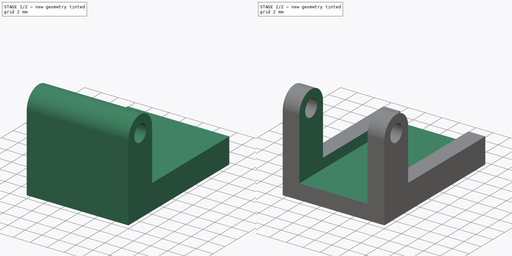
[diagram: build sequence overview — one tinted view per stage of 2, left to right]
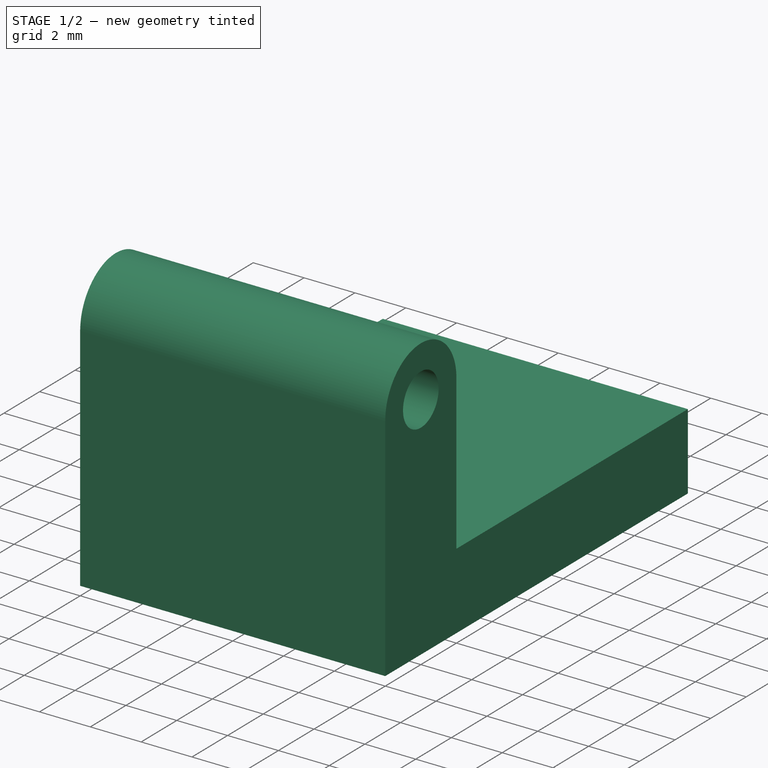
[diagram: stage 1 of 2 — iso view after this stage's code; geometry added in this stage tinted green]
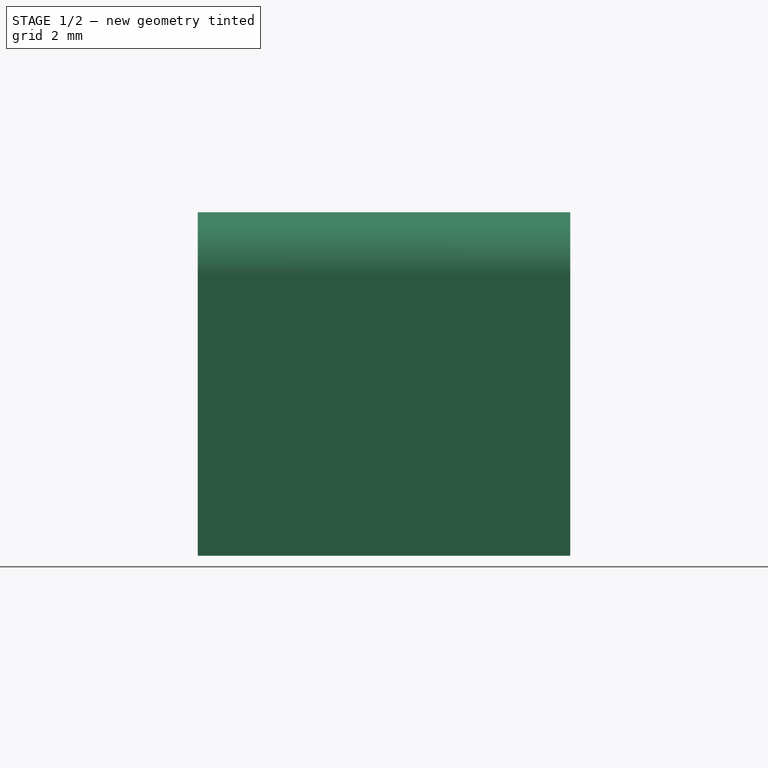
[diagram: stage 1 of 2 — front view after this stage's code; geometry added in this stage tinted green]
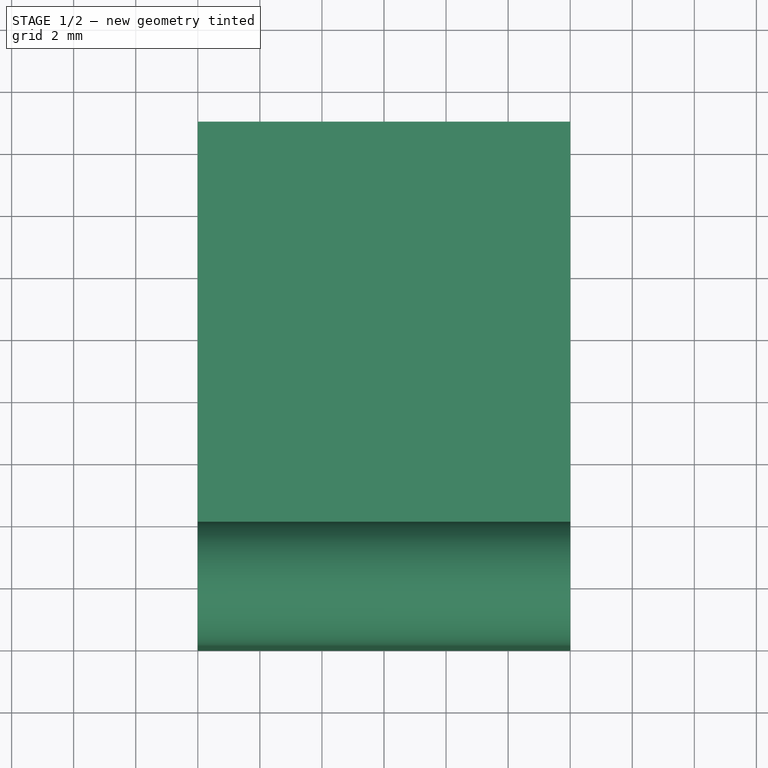
[diagram: stage 1 of 2 — top view after this stage's code; geometry added in this stage tinted green]
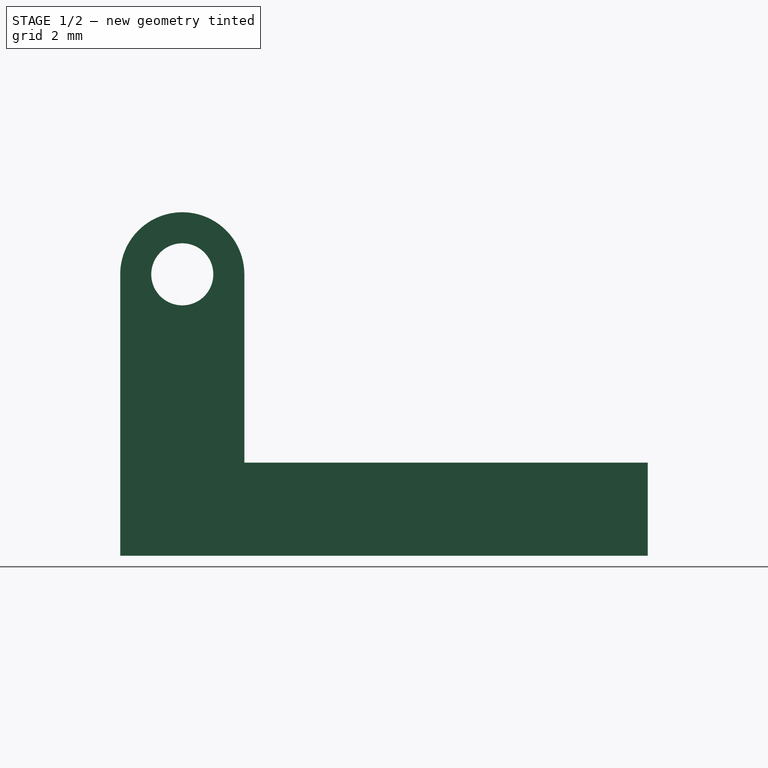
[diagram: stage 1 of 2 — right view after this stage's code; geometry added in this stage tinted green]
FCSTD DOCUMENT  (FreeCAD 0.19R24267 +148 (Git))
Label: Part Design
License: All rights reserved
LicenseURL: http://en.wikipedia.org/wiki/All_rights_reserved
objects: Sketcher::SketchObject×3, PartDesign::Pad×1, PartDesign::Plane×1, PartDesign::Pocket×1, PartDesign::Body×1
note: 9 computed .brp shape members not serialized (recipe doc carries the construction recipe); baked Part::Feature solids carry a one-line shape summary decoded from their .brp

FEATURE [Sketcher::SketchObject] Sketch
  FullyConstrained = false
  MapMode = 5
  Placement = pos=(0,0,0) rot=(0.57735,0.57735,0.57735;2.0944rad)
  Support = -> [YZ_Plane]
  sketch-geometry (7):
    g0: LineSegment StartX=0 StartY=0 StartZ=0 EndX=17 EndY=0 EndZ=0
    g1: LineSegment StartX=17 StartY=0 StartZ=0 EndX=17 EndY=3 EndZ=0
    g2: LineSegment StartX=17 StartY=3 StartZ=0 EndX=4 EndY=3 EndZ=0
    g3: LineSegment StartX=4 StartY=3 StartZ=0 EndX=4 EndY=9.068 EndZ=0
    g4: ArcOfCircle CenterX=2 CenterY=9.068 CenterZ=0 NormalX=0 NormalY=0 NormalZ=1 AngleXU=0 Radius=2 StartAngle=1e-16 EndAngle=3.14159
    g5: LineSegment StartX=0 StartY=9.068 StartZ=0 EndX=0 EndY=0 EndZ=0
    g6: Circle CenterX=2 CenterY=9.068 CenterZ=0 NormalX=0 NormalY=0 NormalZ=1 AngleXU=0 Radius=1
  constraints (14):
    c: Coincident(g-1,g0)
    c: PointOnObject(g0,g-1)
    c: Coincident(g0,g1)
    c: Vertical(g1)
    c: Coincident(g1,g2)
    c: Horizontal(g2)
    c: Coincident(g2,g3)
    c: Vertical(g3)
    c: Tangent(g3,g4) = -1.5708
    c: PointOnObject(g4,g-2)
    c: Tangent(g4,g5) = -1.5708
    c: Coincident(g5,g0)
    c: Coincident(g6,g4)
    c: Radius(g4) = 2
FEATURE [PartDesign::Pad] Pad
  Direction = (1,1,1)
  Length = 12
  Length2 = 100
  Placement = pos=(0,0,0) rot=(0.57735,0.57735,0.57735;2.0944rad)
  Profile = -> Sketch
  Type = 0
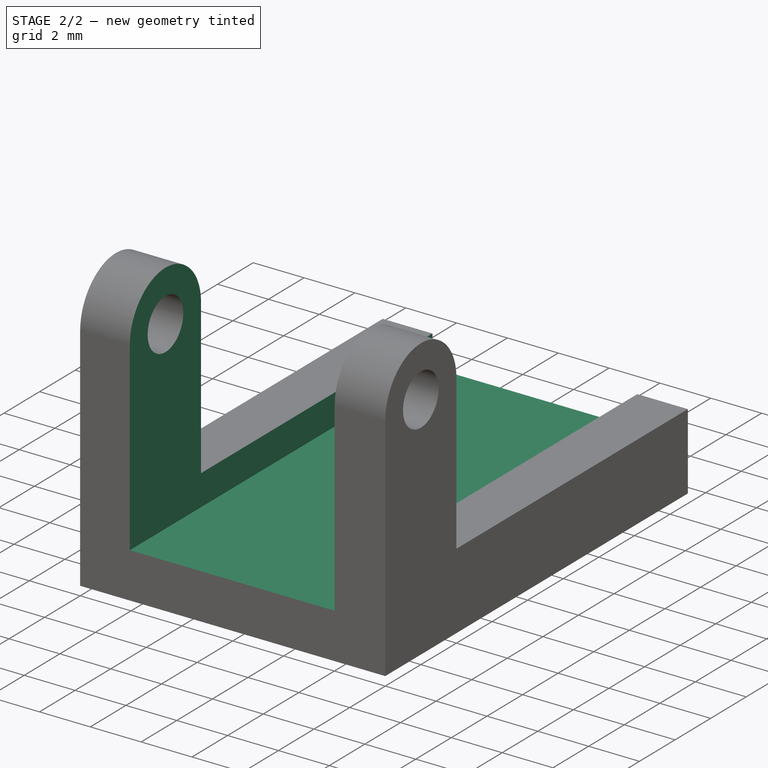
[diagram: stage 2 of 2 — iso view after this stage's code; geometry added in this stage tinted green]
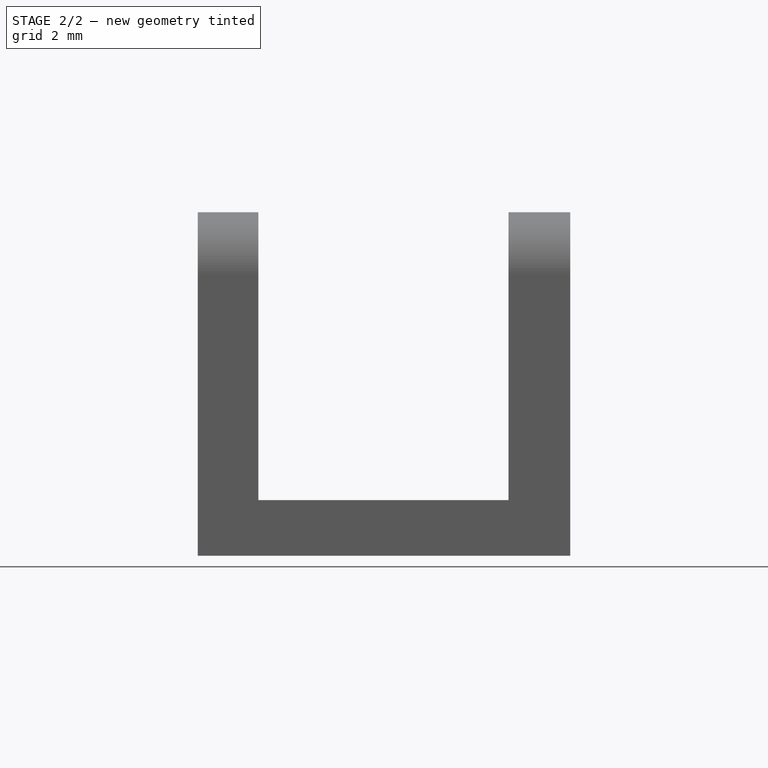
[diagram: stage 2 of 2 — front view after this stage's code; geometry added in this stage tinted green]
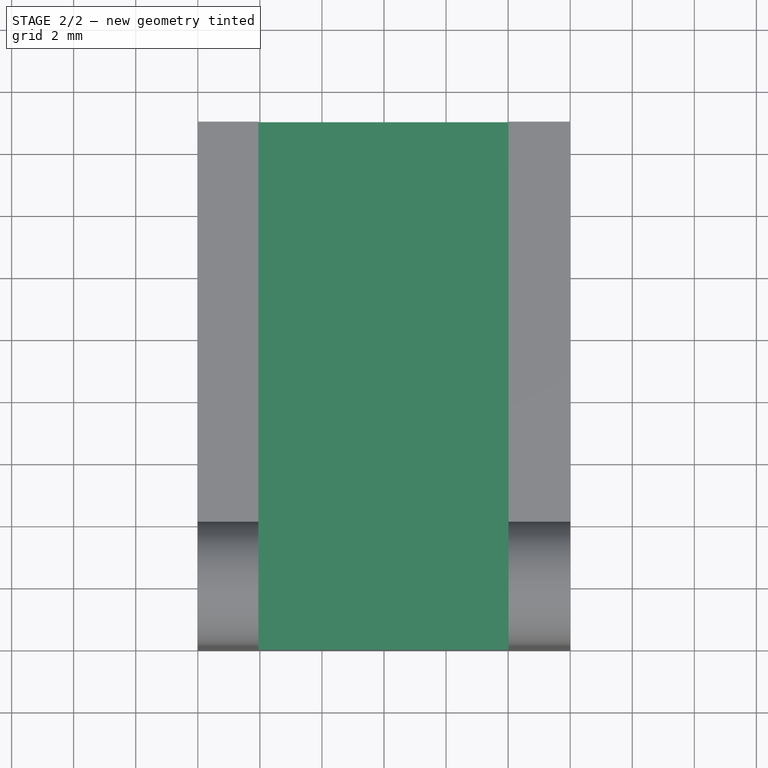
[diagram: stage 2 of 2 — top view after this stage's code; geometry added in this stage tinted green]
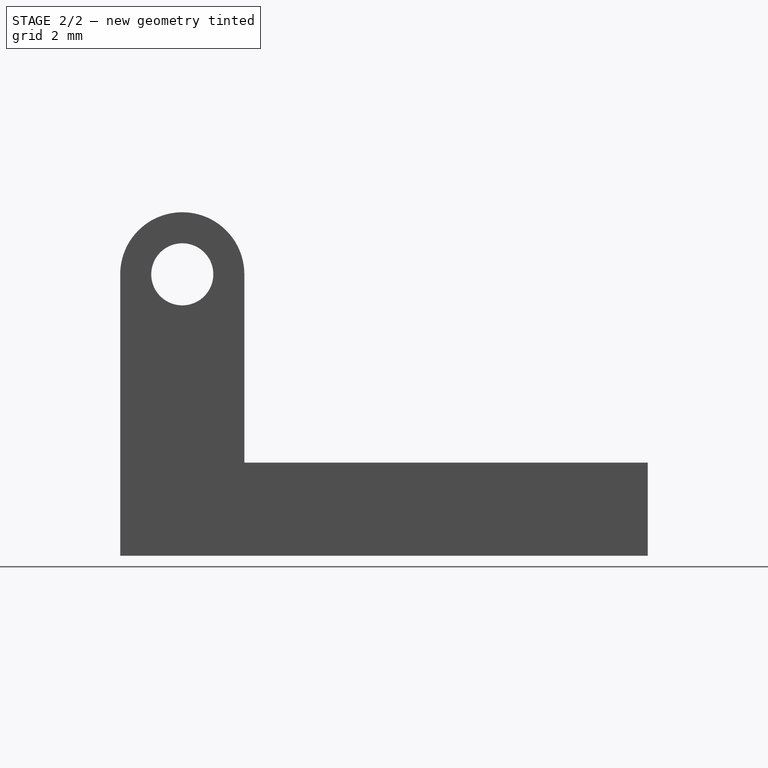
[diagram: stage 2 of 2 — right view after this stage's code; geometry added in this stage tinted green]
FEATURE [Sketcher::SketchObject] Sketch001
  FullyConstrained = true
  MapMode = 5
  Placement = pos=(0,0,0) rot=(1,0,0;1.5708rad)
  Support = -> [XZ_Plane]
FEATURE [PartDesign::Plane] DatumPlane
  Length = 60
  MapMode = 5
  Placement = pos=(7.5e-15,17,-5.7e-15) rot=(0.57735,0.57735,0.57735;4.18879rad)
  ResizeMode = 0
  Support = -> [Pad]
  Width = 60
FEATURE [Sketcher::SketchObject] Sketch002
  FullyConstrained = false
  MapMode = 5
  Placement = pos=(7.5e-15,17,-5.7e-15) rot=(0.57735,0.57735,0.57735;4.18879rad)
  Support = -> [Pad]
  sketch-geometry (4):
    g0: LineSegment StartX=13.2206 StartY=10.0112 StartZ=0 EndX=1.78991 EndY=10.0112 EndZ=0
    g1: LineSegment StartX=1.78991 StartY=10.0112 StartZ=0 EndX=1.78991 EndY=1.95375 EndZ=0
    g2: LineSegment StartX=1.78991 StartY=1.95375 StartZ=0 EndX=13.2206 EndY=1.95375 EndZ=0
    g3: LineSegment StartX=13.2206 StartY=1.95375 StartZ=0 EndX=13.2206 EndY=10.0112 EndZ=0
  constraints (8):
    c: Coincident(g0,g1)
    c: Coincident(g1,g2)
    c: Coincident(g2,g3)
    c: Coincident(g3,g0)
    c: Horizontal(g0)
    c: Horizontal(g2)
    c: Vertical(g1)
    c: Vertical(g3)
FEATURE [PartDesign::Pocket] Pocket
  BaseFeature = -> Pad
  Length = 17
  Length2 = 100
  Placement = pos=(0,0,0) rot=(0.57735,0.57735,0.57735;2.0944rad)
  Profile = -> Sketch002
  Type = 0
FEATURE [PartDesign::Body] Body
  Group = -> [Sketch,Pad,Sketch001,DatumPlane,Sketch002,Pocket]
  Origin = -> Origin
  Tip = -> Pocket
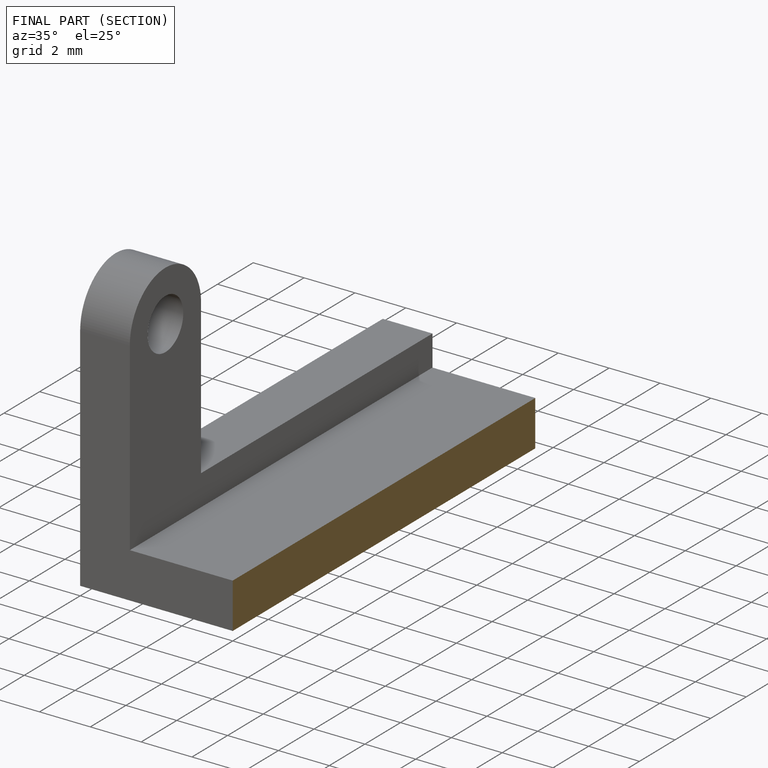
[diagram: finished part — half-section view (interior)]
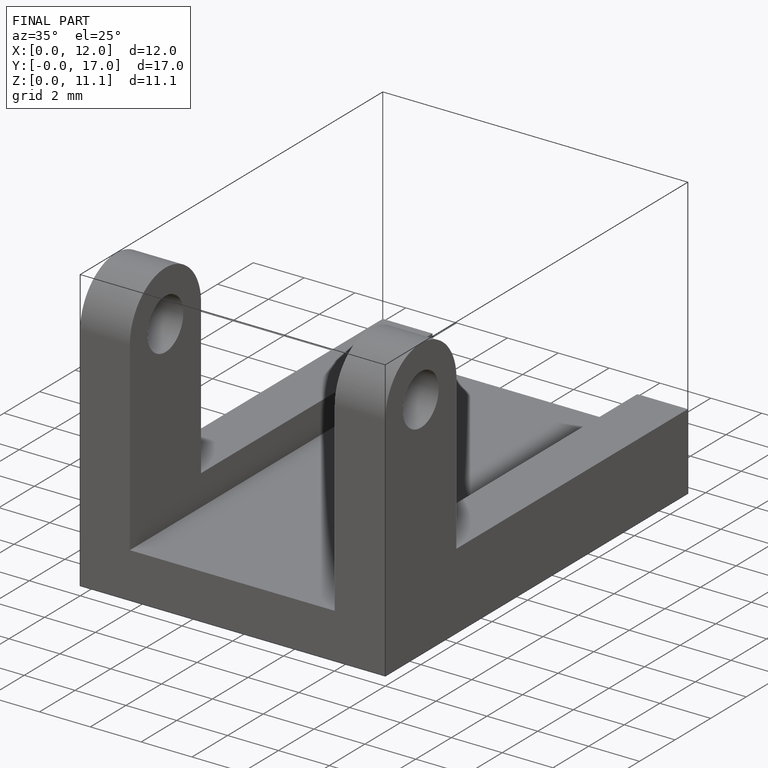
[diagram: finished part — iso view with bounding-box wireframe]
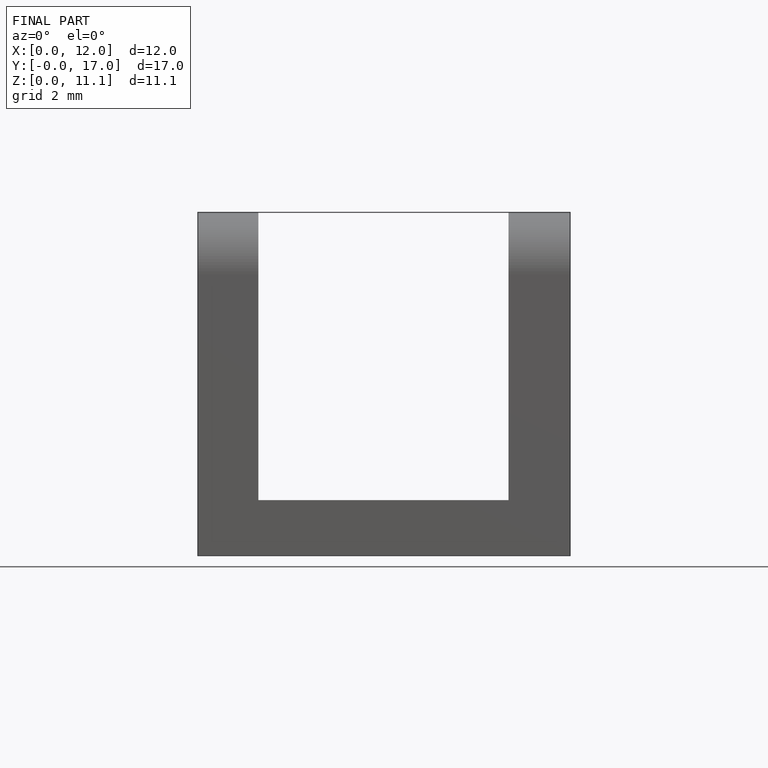
[diagram: finished part — front view with bounding-box wireframe]
